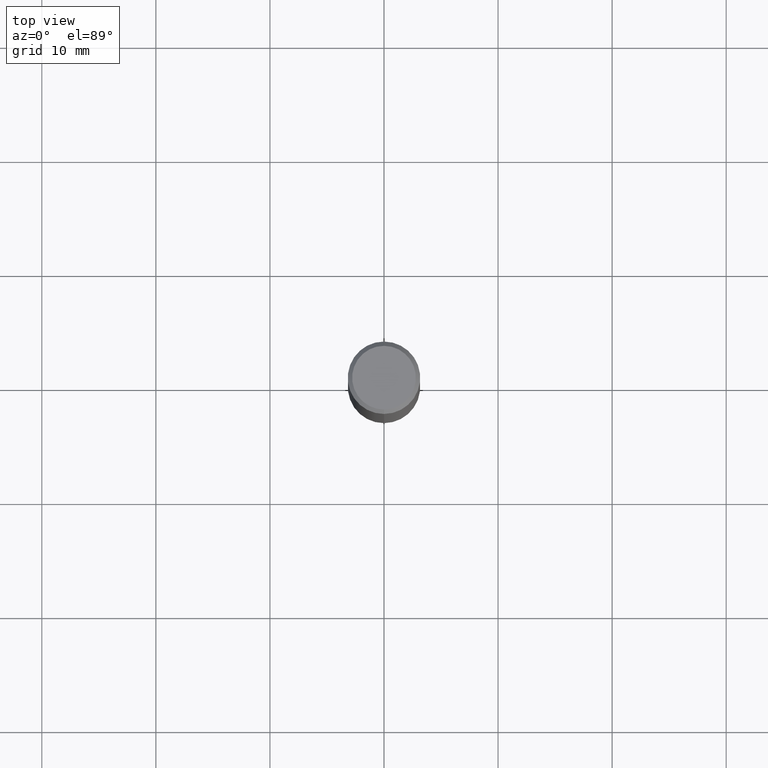
[diagram: clean part render]
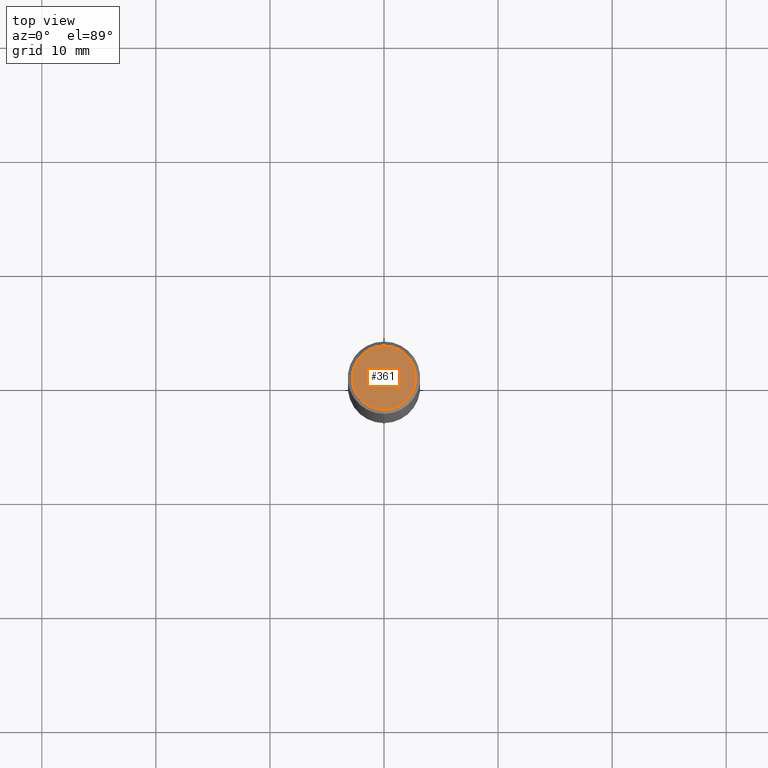
[diagram: same view with one face highlighted and labeled with its STEP entity id]
A machine part, top view. The second image highlights one B-rep face of the part: STEP entity #361.
In plain terms, the highlighted planar face has unit normal (0, -0, -1).
Its self-contained STEP definition (entity closure, byte-faithful):
#44 = EDGE_CURVE ( 'NONE', #522, #469, #174, .T. ) ;
#49 = ORIENTED_EDGE ( 'NONE', *, *, #44, .T. ) ;
#78 = AXIS2_PLACEMENT_3D ( 'NONE', #308, #311, #484 ) ;
#101 = DIRECTION ( 'NONE',  ( 6.982962677686265922E-15, 1.000000000000000000, -3.491504277399136299E-15 ) ) ;
#107 = FACE_OUTER_BOUND ( 'NONE', #374, .T. ) ;
#170 = AXIS2_PLACEMENT_3D ( 'NONE', #503, #463, #101 ) ;
#174 = CIRCLE ( 'NONE', #78, 0.1100000000000000006 ) ;
#180 = CARTESIAN_POINT ( 'NONE',  ( -8.061085147381546509E-16, -0.1100000000000000006, 3.705968789644431763E-16 ) ) ;
#308 = CARTESIAN_POINT ( 'NONE',  ( 3.292914702305876277E-46, -4.703661131891596783E-32, -1.346859154946182800E-17 ) ) ;
#311 = DIRECTION ( 'NONE',  ( -2.445452788277100287E-29, 3.491504277399136299E-15, 1.000000000000000000 ) ) ;
#330 = PLANE ( 'NONE',  #170 ) ;
#335 = ORIENTED_EDGE ( 'NONE', *, *, #349, .T. ) ;
#349 = EDGE_CURVE ( 'NONE', #469, #522, #508, .T. ) ;
#361 = ADVANCED_FACE ( 'NONE', ( #107 ), #330, .F. ) ;
#374 = EDGE_LOOP ( 'NONE', ( #49, #335 ) ) ;
#420 = CARTESIAN_POINT ( 'NONE',  ( 8.204981146281364568E-16, 0.1100000000000000006, -3.975340620633669001E-16 ) ) ;
#463 = DIRECTION ( 'NONE',  ( 2.445452788277100006E-29, -3.491504277399136299E-15, -1.000000000000000000 ) ) ;
#468 = CARTESIAN_POINT ( 'NONE',  ( 3.292914702305876277E-46, -4.703661131891596783E-32, -1.346859154946182800E-17 ) ) ;
#469 = VERTEX_POINT ( 'NONE', #180 ) ;
#479 = AXIS2_PLACEMENT_3D ( 'NONE', #468, #509, #545 ) ;
#484 = DIRECTION ( 'NONE',  ( -6.982962677686266711E-15, -1.000000000000000000, 3.491504277399136693E-15 ) ) ;
#503 = CARTESIAN_POINT ( 'NONE',  ( 7.681258945454893776E-16, 0.1100000000000000006, -1.517630668430129129E-16 ) ) ;
#508 = CIRCLE ( 'NONE', #479, 0.1100000000000000006 ) ;
#509 = DIRECTION ( 'NONE',  ( -2.445452788277100287E-29, 3.491504277399136299E-15, 1.000000000000000000 ) ) ;
#522 = VERTEX_POINT ( 'NONE', #420 ) ;
#545 = DIRECTION ( 'NONE',  ( -6.982962677686266711E-15, -1.000000000000000000, 3.491504277399136693E-15 ) ) ;